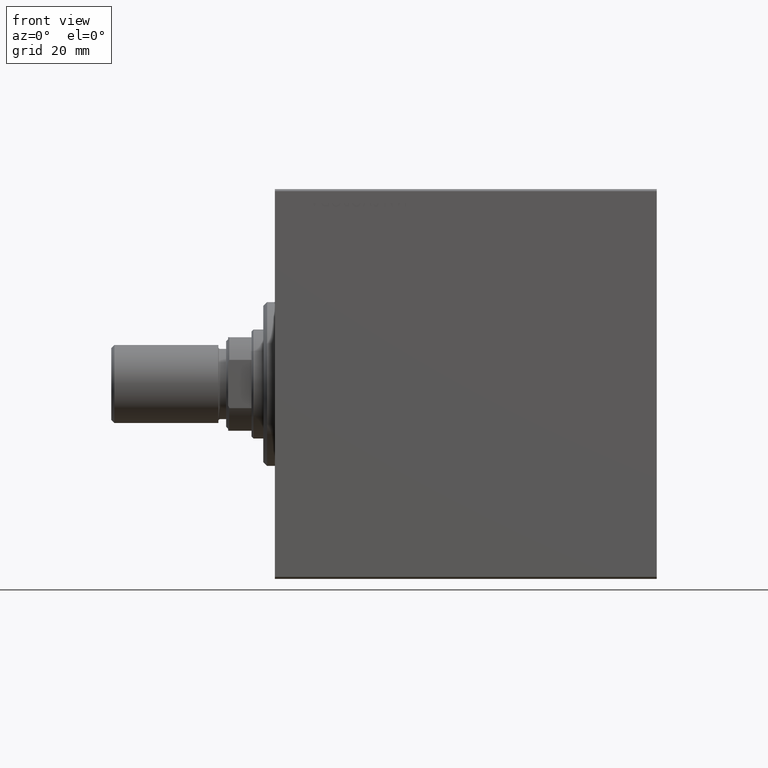
[diagram: clean part render]
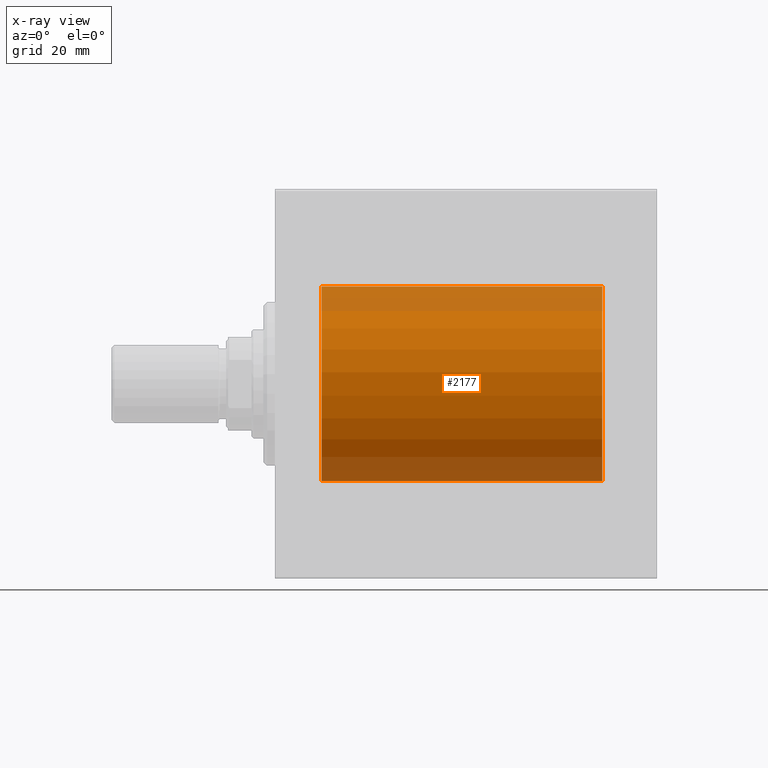
[diagram: x-ray — body ghosted, one internal face saturated and labeled with its STEP entity id]
A machine part, front view, then the same camera in x-ray: the body is ghosted and one INTERNAL B-rep face — a face not visible from any outside direction — is saturated and labeled: STEP entity #2177.
In plain terms, the highlighted cylindrical surface (partial cylindrical patch) has radius 25 mm, axis along (-1, -0, -0).
Its self-contained STEP definition (entity closure, byte-faithful):
#817 = VECTOR ( 'NONE', #11753, 1000.000000000000000 ) ;
#1485 = CARTESIAN_POINT ( 'NONE',  ( 31.50000000000000000, 3.061616978460191625E-15, -25.00000000000000000 ) ) ;
#1907 = VERTEX_POINT ( 'NONE', #37774 ) ;
#1953 = AXIS2_PLACEMENT_3D ( 'NONE', #17390, #31240, #34897 ) ;
#2080 = CARTESIAN_POINT ( 'NONE',  ( 29.64904390169096615, -2.419770561643904472, -24.88263927071750459 ) ) ;
#2177 = ADVANCED_FACE ( 'NONE', ( #24226 ), #37668, .F. ) ;
#2265 = EDGE_CURVE ( 'NONE', #8722, #9063, #14265, .T. ) ;
#2290 = CARTESIAN_POINT ( 'NONE',  ( 31.48417840057656036, -0.3254210271412191213, -24.99840249400844172 ) ) ;
#2303 = CARTESIAN_POINT ( 'NONE',  ( 81.25383195424505800, -2.169003991399860443, -24.90589728951139037 ) ) ;
#2431 = LINE ( 'NONE', #40831, #16183 ) ;
#2513 = CARTESIAN_POINT ( 'NONE',  ( 26.75393620905934000, -1.109818057797415936, -24.97580694515542987 ) ) ;
#2753 = CARTESIAN_POINT ( 'NONE',  ( 79.35439333851368815, -2.420689345803750836, -24.88254961038873958 ) ) ;
#2965 = CARTESIAN_POINT ( 'NONE',  ( 78.47743225659816346, -1.989585286700248590, -24.92087098724766747 ) ) ;
#3853 = ORIENTED_EDGE ( 'NONE', *, *, #33666, .T. ) ;
#4093 = AXIS2_PLACEMENT_3D ( 'NONE', #11339, #18123, #15189 ) ;
#5287 = CARTESIAN_POINT ( 'NONE',  ( 27.11814045851354393, -1.653834020452936260, -24.94550385189585029 ) ) ;
#5754 = CARTESIAN_POINT ( 'NONE',  ( 79.19564339083697746, -2.372734907014171224, -24.88722742718433523 ) ) ;
#6184 = CARTESIAN_POINT ( 'NONE',  ( 79.67403429960539540, -2.484007091859756766, -24.87630842367762796 ) ) ;
#6935 = ORIENTED_EDGE ( 'NONE', *, *, #30333, .T. ) ;
#8541 = ORIENTED_EDGE ( 'NONE', *, *, #11512, .T. ) ;
#8702 = CARTESIAN_POINT ( 'NONE',  ( 30.11036796508863844, -2.245863995402896496, -24.89899750494197406 ) ) ;
#8722 = VERTEX_POINT ( 'NONE', #11966 ) ;
#9063 = VERTEX_POINT ( 'NONE', #15045 ) ;
#9149 = CARTESIAN_POINT ( 'NONE',  ( 26.56650644760253499, -0.6588655613945881839, -24.99312727339971119 ) ) ;
#9370 = CARTESIAN_POINT ( 'NONE',  ( 26.83172358506043764, -1.255214705003178555, -24.96884293994578741 ) ) ;
#9725 = DIRECTION ( 'NONE',  ( -1.000000000000000000, -0.000000000000000000, -0.000000000000000000 ) ) ;
#10011 = CARTESIAN_POINT ( 'NONE',  ( 84.00000000000000000, 3.061616997868382254E-15, -25.00000000000000000 ) ) ;
#10045 = CARTESIAN_POINT ( 'NONE',  ( 78.11814045851357946, -1.653834020452939146, -24.94550385189584318 ) ) ;
#10319 = ORIENTED_EDGE ( 'NONE', *, *, #39861, .F. ) ;
#10689 = CARTESIAN_POINT ( 'NONE',  ( 84.00000000000000000, 3.061616997868382254E-15, -25.00000000000000000 ) ) ;
#10946 = ORIENTED_EDGE ( 'NONE', *, *, #18870, .T. ) ;
#11339 = CARTESIAN_POINT ( 'NONE',  ( 11.99999999999999645, 0.000000000000000000, 0.000000000000000000 ) ) ;
#11512 = EDGE_CURVE ( 'NONE', #32508, #31126, #2431, .T. ) ;
#11539 = CARTESIAN_POINT ( 'NONE',  ( 84.00000000000000000, 0.000000000000000000, 25.00000000000000000 ) ) ;
#11595 = B_SPLINE_CURVE_WITH_KNOTS ( 'NONE', 3,
 ( #36879, #30699, #26841, #37548, #44565, #16409, #13454, #40500, #27281, #40932, #33442, #2303, #30261, #37325, #23222, #20248, #37096, #17067, #6184, #2753, #5754, #44335, #34108, #2965, #30041, #10045, #23883, #37766, #30925, #44790, #31370, #17514 ),
 .UNSPECIFIED., .F., .F.,
 ( 4, 2, 2, 2, 2, 2, 2, 2, 2, 2, 2, 2, 2, 2, 2, 4 ),
 ( 0.007821024441662298085, 0.008309723826317902753, 0.008798423210973509156, 0.009287122595629113825, 0.009775821980284718493, 0.01026452136494032490, 0.01075322074959592956, 0.01124192013425153597, 0.01173061951890714064, 0.01221931890356274530, 0.01270801828821835171, 0.01319671767287395811, 0.01368541705752956104, 0.01417411644218516745, 0.01466281582684077212, 0.01564021459615199880 ),
 .UNSPECIFIED. ) ;
#11753 = DIRECTION ( 'NONE',  ( -1.000000000000000000, -0.000000000000000000, -0.000000000000000000 ) ) ;
#11833 = ORIENTED_EDGE ( 'NONE', *, *, #2265, .F. ) ;
#11966 = CARTESIAN_POINT ( 'NONE',  ( 84.00000000000000000, 0.000000000000000000, 25.00000000000000000 ) ) ;
#12343 = DIRECTION ( 'NONE',  ( -1.000000000000000000, -0.000000000000000000, -0.000000000000000000 ) ) ;
#12347 = CARTESIAN_POINT ( 'NONE',  ( 28.35439333851369526, -2.420689345803757053, -24.88254961038873958 ) ) ;
#12557 = CARTESIAN_POINT ( 'NONE',  ( 30.65383336149338689, -1.881857718844712757, -24.92933960374833902 ) ) ;
#12773 = CARTESIAN_POINT ( 'NONE',  ( 30.98749815834399257, -1.525407911884362644, -24.95379469572362652 ) ) ;
#13454 = CARTESIAN_POINT ( 'NONE',  ( 82.17011290280929359, -1.252049606094341572, -24.96900299967627745 ) ) ;
#14265 = LINE ( 'NONE', #11539, #817 ) ;
#15045 = CARTESIAN_POINT ( 'NONE',  ( 11.99999999999999645, 0.000000000000000000, 25.00000000000000000 ) ) ;
#15189 = DIRECTION ( 'NONE',  ( 0.000000000000000000, 0.000000000000000000, 1.000000000000000000 ) ) ;
#15222 = VERTEX_POINT ( 'NONE', #25176 ) ;
#15483 = B_SPLINE_CURVE_WITH_KNOTS ( 'NONE', 3,
 ( #19780, #33426, #2290, #18910, #29579, #39832, #23203, #12773, #16173, #12557, #33648, #15963, #8702, #43656, #2080, #25729, #22541, #36200, #30021, #12347, #25954, #26615, #29797, #40485, #32767, #5287, #36421, #9370, #2513, #9149, #36864, #15750 ),
 .UNSPECIFIED., .F., .F.,
 ( 4, 2, 2, 2, 2, 2, 2, 2, 2, 2, 2, 2, 2, 2, 2, 4 ),
 ( 0.007821024441662303289, 0.008309723826317913162, 0.008798423210973523034, 0.009287122595629127703, 0.009775821980284732371, 0.01026452136494033877, 0.01075322074959594518, 0.01124192013425154985, 0.01173061951890715451, 0.01221931890356276092, 0.01270801828821836559, 0.01319671767287397025, 0.01368541705752957666, 0.01417411644218518132, 0.01466281582684078599, 0.01564021459615200227 ),
 .UNSPECIFIED. ) ;
#15750 = CARTESIAN_POINT ( 'NONE',  ( 26.50000000000000355, -3.314090237927254693E-15, -25.00000000000000000 ) ) ;
#15963 = CARTESIAN_POINT ( 'NONE',  ( 30.25383195424503668, -2.169003991399866660, -24.90589728951138682 ) ) ;
#16173 = CARTESIAN_POINT ( 'NONE',  ( 30.88412382786470900, -1.651251241585097951, -24.94567559498349141 ) ) ;
#16183 = VECTOR ( 'NONE', #9725, 1000.000000000000000 ) ;
#16230 = VERTEX_POINT ( 'NONE', #36313 ) ;
#16409 = CARTESIAN_POINT ( 'NONE',  ( 82.24760251019554858, -1.106703319666881180, -24.97594585958024282 ) ) ;
#16486 = VERTEX_POINT ( 'NONE', #1485 ) ;
#17067 = CARTESIAN_POINT ( 'NONE',  ( 79.83676410361458409, -2.500125740978189182, -24.87467329022545215 ) ) ;
#17390 = CARTESIAN_POINT ( 'NONE',  ( 84.00000000000000000, 0.000000000000000000, 0.000000000000000000 ) ) ;
#17514 = CARTESIAN_POINT ( 'NONE',  ( 77.50000000000001421, -3.163294216715586498E-15, -25.00000000000000000 ) ) ;
#17844 = VECTOR ( 'NONE', #44083, 1000.000000000000000 ) ;
#18123 = DIRECTION ( 'NONE',  ( -1.000000000000000000, 0.000000000000000000, 0.000000000000000000 ) ) ;
#18870 = EDGE_CURVE ( 'NONE', #16230, #16486, #29572, .T. ) ;
#18910 = CARTESIAN_POINT ( 'NONE',  ( 31.42014909220929653, -0.6480119923854192887, -24.99212088949391131 ) ) ;
#19780 = CARTESIAN_POINT ( 'NONE',  ( 31.50000000000000000, 3.061616978460191625E-15, -25.00000000000000000 ) ) ;
#20248 = CARTESIAN_POINT ( 'NONE',  ( 80.32947680114270383, -2.483544361357264751, -24.87635491893501438 ) ) ;
#22541 = CARTESIAN_POINT ( 'NONE',  ( 29.16706495178061331, -2.499872792855078352, -24.87469871246083031 ) ) ;
#23090 = EDGE_LOOP ( 'NONE', ( #10319, #8541, #3853, #10946, #6935, #30114, #33671, #11833 ) ) ;
#23199 = CARTESIAN_POINT ( 'NONE',  ( 84.00000000000000000, 3.061616997868382254E-15, -25.00000000000000000 ) ) ;
#23203 = CARTESIAN_POINT ( 'NONE',  ( 31.17011290280923674, -1.252049606094335132, -24.96900299967627035 ) ) ;
#23222 = CARTESIAN_POINT ( 'NONE',  ( 80.64904390169097326, -2.419770561643902695, -24.88263927071750814 ) ) ;
#23676 = CIRCLE ( 'NONE', #4093, 25.00000000000000000 ) ;
#23883 = CARTESIAN_POINT ( 'NONE',  ( 78.01461966282909088, -1.528152964861308138, -24.95362559291378091 ) ) ;
#23997 = CARTESIAN_POINT ( 'NONE',  ( 84.00000000000000000, 0.000000000000000000, 0.000000000000000000 ) ) ;
#24226 = FACE_OUTER_BOUND ( 'NONE', #23090, .T. ) ;
#24425 = CIRCLE ( 'NONE', #1953, 25.00000000000000000 ) ;
#25176 = CARTESIAN_POINT ( 'NONE',  ( 11.99999999999999645, 3.061616997868382254E-15, -25.00000000000000000 ) ) ;
#25729 = CARTESIAN_POINT ( 'NONE',  ( 29.32947680114269318, -2.483544361357266972, -24.87635491893501793 ) ) ;
#25954 = CARTESIAN_POINT ( 'NONE',  ( 28.19564339083698457, -2.372734907014170780, -24.88722742718433878 ) ) ;
#26615 = CARTESIAN_POINT ( 'NONE',  ( 27.89276154161589716, -2.247417070759893498, -24.89885693081946272 ) ) ;
#26841 = CARTESIAN_POINT ( 'NONE',  ( 82.48417840057659589, -0.3254210271412191768, -24.99840249400844883 ) ) ;
#27281 = CARTESIAN_POINT ( 'NONE',  ( 81.88412382786472676, -1.651251241585101059, -24.94567559498348430 ) ) ;
#29572 = LINE ( 'NONE', #23199, #43239 ) ;
#29579 = CARTESIAN_POINT ( 'NONE',  ( 31.37215969408607563, -0.8058335233485421911, -24.98746277938383287 ) ) ;
#29797 = CARTESIAN_POINT ( 'NONE',  ( 27.74915976075945068, -2.170728182476715951, -24.90574631553724672 ) ) ;
#30021 = CARTESIAN_POINT ( 'NONE',  ( 28.67403429960539540, -2.484007091859760319, -24.87630842367762440 ) ) ;
#30041 = CARTESIAN_POINT ( 'NONE',  ( 78.34878866440891443, -1.884161199660618013, -24.92916496727982789 ) ) ;
#30114 = ORIENTED_EDGE ( 'NONE', *, *, #36887, .T. ) ;
#30261 = CARTESIAN_POINT ( 'NONE',  ( 81.11036796508865621, -2.245863995402895164, -24.89899750494197406 ) ) ;
#30333 = EDGE_CURVE ( 'NONE', #16486, #1907, #15483, .T. ) ;
#30699 = CARTESIAN_POINT ( 'NONE',  ( 82.50000000000000000, -0.1631750940176171505, -25.00000000000000355 ) ) ;
#30925 = CARTESIAN_POINT ( 'NONE',  ( 77.75393620905936132, -1.109818057797414381, -24.97580694515541921 ) ) ;
#31126 = VERTEX_POINT ( 'NONE', #35081 ) ;
#31240 = DIRECTION ( 'NONE',  ( -1.000000000000000000, 0.000000000000000000, 0.000000000000000000 ) ) ;
#31370 = CARTESIAN_POINT ( 'NONE',  ( 77.50000000000001421, -0.3305063766663793867, -25.00000000000000711 ) ) ;
#32508 = VERTEX_POINT ( 'NONE', #10689 ) ;
#32767 = CARTESIAN_POINT ( 'NONE',  ( 27.34878866440887535, -1.884161199660613351, -24.92916496727982079 ) ) ;
#33426 = CARTESIAN_POINT ( 'NONE',  ( 31.49999999999999289, -0.1631750940176174836, -25.00000000000000711 ) ) ;
#33442 = CARTESIAN_POINT ( 'NONE',  ( 81.52536182243082408, -1.987446652080251619, -24.92104239223420592 ) ) ;
#33648 = CARTESIAN_POINT ( 'NONE',  ( 30.52536182243080276, -1.987446652080258724, -24.92104239223419881 ) ) ;
#33666 = EDGE_CURVE ( 'NONE', #31126, #16230, #11595, .T. ) ;
#33671 = ORIENTED_EDGE ( 'NONE', *, *, #38839, .T. ) ;
#34108 = CARTESIAN_POINT ( 'NONE',  ( 78.74915976075949686, -2.170728182476720391, -24.90574631553725027 ) ) ;
#34897 = DIRECTION ( 'NONE',  ( 0.000000000000000000, 0.000000000000000000, 1.000000000000000000 ) ) ;
#35081 = CARTESIAN_POINT ( 'NONE',  ( 82.50000000000001421, 3.061616978466502512E-15, -25.00000000000000000 ) ) ;
#36200 = CARTESIAN_POINT ( 'NONE',  ( 28.83676410361456632, -2.500125740978190958, -24.87467329022545215 ) ) ;
#36313 = CARTESIAN_POINT ( 'NONE',  ( 77.50000000000001421, -3.163294216715586498E-15, -25.00000000000000000 ) ) ;
#36421 = CARTESIAN_POINT ( 'NONE',  ( 27.01461966282905891, -1.528152964861308138, -24.95362559291378801 ) ) ;
#36864 = CARTESIAN_POINT ( 'NONE',  ( 26.50000000000001066, -0.3305063766663772773, -25.00000000000000711 ) ) ;
#36879 = CARTESIAN_POINT ( 'NONE',  ( 82.50000000000001421, 3.061616978466502512E-15, -25.00000000000000000 ) ) ;
#36887 = EDGE_CURVE ( 'NONE', #1907, #15222, #41118, .T. ) ;
#37096 = CARTESIAN_POINT ( 'NONE',  ( 80.16706495178063108, -2.499872792855076575, -24.87469871246082675 ) ) ;
#37325 = CARTESIAN_POINT ( 'NONE',  ( 80.80788342405803348, -2.371528299825742092, -24.88734287464371064 ) ) ;
#37548 = CARTESIAN_POINT ( 'NONE',  ( 82.42014909220930008, -0.6480119923854186226, -24.99212088949390775 ) ) ;
#37668 = CYLINDRICAL_SURFACE ( 'NONE', #40011, 25.00000000000000000 ) ;
#37766 = CARTESIAN_POINT ( 'NONE',  ( 77.83172358506043054, -1.255214705003180109, -24.96884293994577675 ) ) ;
#37774 = CARTESIAN_POINT ( 'NONE',  ( 26.50000000000000355, -3.314090237927254693E-15, -25.00000000000000000 ) ) ;
#38111 = DIRECTION ( 'NONE',  ( -1.000000000000000000, -0.000000000000000000, -0.000000000000000000 ) ) ;
#38839 = EDGE_CURVE ( 'NONE', #15222, #9063, #23676, .T. ) ;
#39832 = CARTESIAN_POINT ( 'NONE',  ( 31.24760251019550950, -1.106703319666878960, -24.97594585958023217 ) ) ;
#39861 = EDGE_CURVE ( 'NONE', #32508, #8722, #24425, .T. ) ;
#40011 = AXIS2_PLACEMENT_3D ( 'NONE', #23997, #38111, #41731 ) ;
#40485 = CARTESIAN_POINT ( 'NONE',  ( 27.47743225659811017, -1.989585286700241928, -24.92087098724766037 ) ) ;
#40500 = CARTESIAN_POINT ( 'NONE',  ( 81.98749815834398191, -1.525407911884367529, -24.95379469572361586 ) ) ;
#40831 = CARTESIAN_POINT ( 'NONE',  ( 84.00000000000000000, 3.061616997868382254E-15, -25.00000000000000000 ) ) ;
#40932 = CARTESIAN_POINT ( 'NONE',  ( 81.65383336149341176, -1.881857718844715421, -24.92933960374833546 ) ) ;
#41118 = LINE ( 'NONE', #10011, #17844 ) ;
#41731 = DIRECTION ( 'NONE',  ( 0.000000000000000000, 0.000000000000000000, 1.000000000000000000 ) ) ;
#43239 = VECTOR ( 'NONE', #12343, 1000.000000000000000 ) ;
#43656 = CARTESIAN_POINT ( 'NONE',  ( 29.80788342405805125, -2.371528299825743424, -24.88734287464369999 ) ) ;
#44083 = DIRECTION ( 'NONE',  ( -1.000000000000000000, -0.000000000000000000, -0.000000000000000000 ) ) ;
#44335 = CARTESIAN_POINT ( 'NONE',  ( 78.89276154161592558, -2.247417070759896607, -24.89885693081946272 ) ) ;
#44565 = CARTESIAN_POINT ( 'NONE',  ( 82.37215969408609340, -0.8058335233485441895, -24.98746277938383287 ) ) ;
#44790 = CARTESIAN_POINT ( 'NONE',  ( 77.56650644760256341, -0.6588655613945877398, -24.99312727339970408 ) ) ;